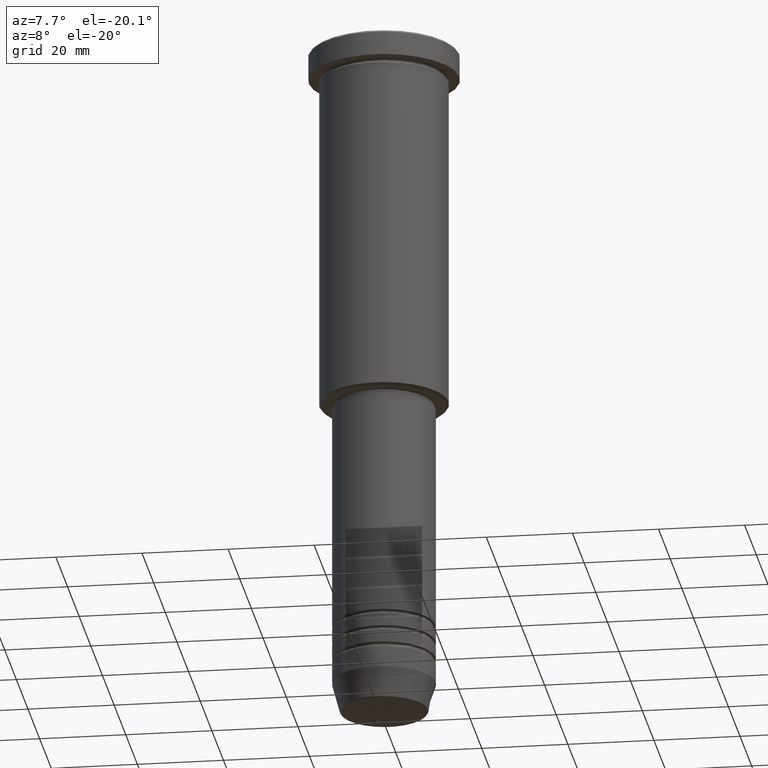
[diagram: clean part render]
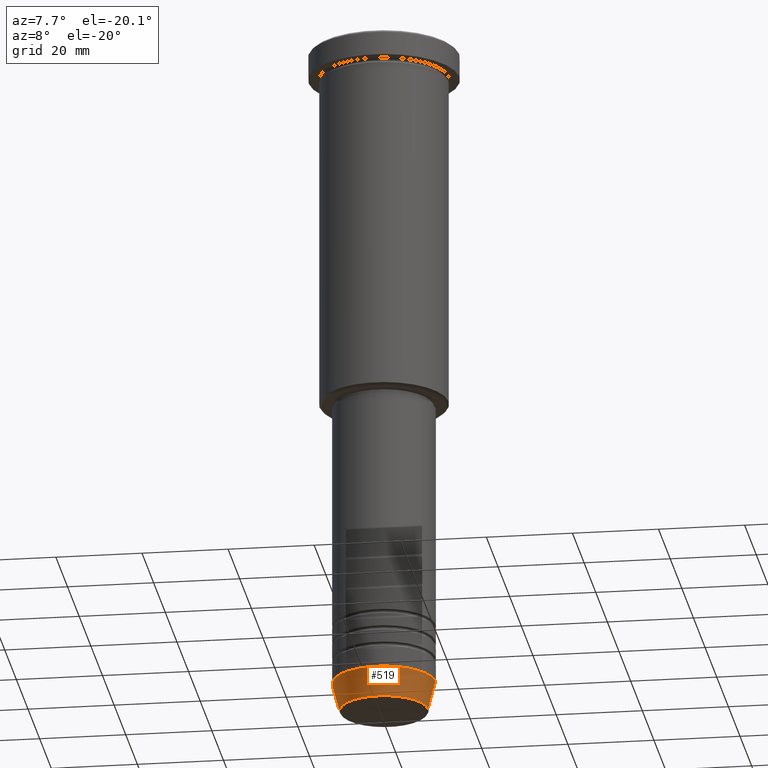
[diagram: same view with one face highlighted and labeled with its STEP entity id]
A machine part, auxiliary view. The second image highlights one B-rep face of the part: STEP entity #519.
In plain terms, the highlighted conical surface has half-angle 15 deg.
Its self-contained STEP definition (entity closure, byte-faithful):
#7 = VERTEX_POINT ( 'NONE', #417 ) ;
#29 = ORIENTED_EDGE ( 'NONE', *, *, #777, .F. ) ;
#55 = CARTESIAN_POINT ( 'NONE',  ( 12.00000000000000000, 0.000000000000000000, -153.9999999999999716 ) ) ;
#57 = CARTESIAN_POINT ( 'NONE',  ( -10.22365507213719127, 1.360806402472382744E-15, -160.6294095225512137 ) ) ;
#99 = DIRECTION ( 'NONE',  ( 1.000000000000000000, 0.000000000000000000, 0.000000000000000000 ) ) ;
#126 = VERTEX_POINT ( 'NONE', #57 ) ;
#138 = EDGE_CURVE ( 'NONE', #7, #1058, #416, .T. ) ;
#142 = AXIS2_PLACEMENT_3D ( 'NONE', #825, #911, #99 ) ;
#145 = DIRECTION ( 'NONE',  ( -0.000000000000000000, -0.000000000000000000, 1.000000000000000000 ) ) ;
#174 = CARTESIAN_POINT ( 'NONE',  ( -12.00000000000000000, 1.469576158976823947E-15, -153.9999999999999716 ) ) ;
#220 = EDGE_CURVE ( 'NONE', #643, #1058, #515, .T. ) ;
#261 = VECTOR ( 'NONE', #806, 1000.000000000000000 ) ;
#416 = LINE ( 'NONE', #55, #913 ) ;
#417 = CARTESIAN_POINT ( 'NONE',  ( 10.22365507213719127, 0.000000000000000000, -160.6294095225512137 ) ) ;
#419 = DIRECTION ( 'NONE',  ( 0.2588190451025213501, 0.000000000000000000, 0.9659258262890680902 ) ) ;
#466 = LINE ( 'NONE', #174, #261 ) ;
#514 = DIRECTION ( 'NONE',  ( 1.000000000000000000, 0.000000000000000000, 0.000000000000000000 ) ) ;
#515 = CIRCLE ( 'NONE', #713, 12.00000000000000000 ) ;
#519 = ADVANCED_FACE ( 'NONE', ( #551 ), #616, .T. ) ;
#521 = EDGE_LOOP ( 'NONE', ( #29, #545, #554, #1045 ) ) ;
#535 = CIRCLE ( 'NONE', #1150, 10.22365507213719127 ) ;
#545 = ORIENTED_EDGE ( 'NONE', *, *, #950, .T. ) ;
#551 = FACE_OUTER_BOUND ( 'NONE', #521, .T. ) ;
#554 = ORIENTED_EDGE ( 'NONE', *, *, #138, .T. ) ;
#565 = CARTESIAN_POINT ( 'NONE',  ( -12.00000000000000000, 1.469576158976823947E-15, -153.9999999999999716 ) ) ;
#616 = CONICAL_SURFACE ( 'NONE', #142, 12.00000000000000000, 0.2617993877991500740 ) ;
#643 = VERTEX_POINT ( 'NONE', #565 ) ;
#682 = CARTESIAN_POINT ( 'NONE',  ( 0.000000000000000000, 0.000000000000000000, -160.6294095225512137 ) ) ;
#713 = AXIS2_PLACEMENT_3D ( 'NONE', #956, #145, #514 ) ;
#760 = CARTESIAN_POINT ( 'NONE',  ( 12.00000000000000000, 0.000000000000000000, -153.9999999999999716 ) ) ;
#777 = EDGE_CURVE ( 'NONE', #126, #643, #466, .T. ) ;
#806 = DIRECTION ( 'NONE',  ( -0.2588190451025213501, 3.169619151431772337E-17, 0.9659258262890680902 ) ) ;
#825 = CARTESIAN_POINT ( 'NONE',  ( 0.000000000000000000, 0.000000000000000000, -153.9999999999999716 ) ) ;
#911 = DIRECTION ( 'NONE',  ( -0.000000000000000000, -0.000000000000000000, 1.000000000000000000 ) ) ;
#913 = VECTOR ( 'NONE', #419, 1000.000000000000000 ) ;
#950 = EDGE_CURVE ( 'NONE', #126, #7, #535, .T. ) ;
#956 = CARTESIAN_POINT ( 'NONE',  ( 0.000000000000000000, 0.000000000000000000, -153.9999999999999716 ) ) ;
#1037 = DIRECTION ( 'NONE',  ( -0.000000000000000000, -0.000000000000000000, 1.000000000000000000 ) ) ;
#1045 = ORIENTED_EDGE ( 'NONE', *, *, #220, .F. ) ;
#1058 = VERTEX_POINT ( 'NONE', #760 ) ;
#1133 = DIRECTION ( 'NONE',  ( 1.000000000000000000, 0.000000000000000000, 0.000000000000000000 ) ) ;
#1150 = AXIS2_PLACEMENT_3D ( 'NONE', #682, #1037, #1133 ) ;